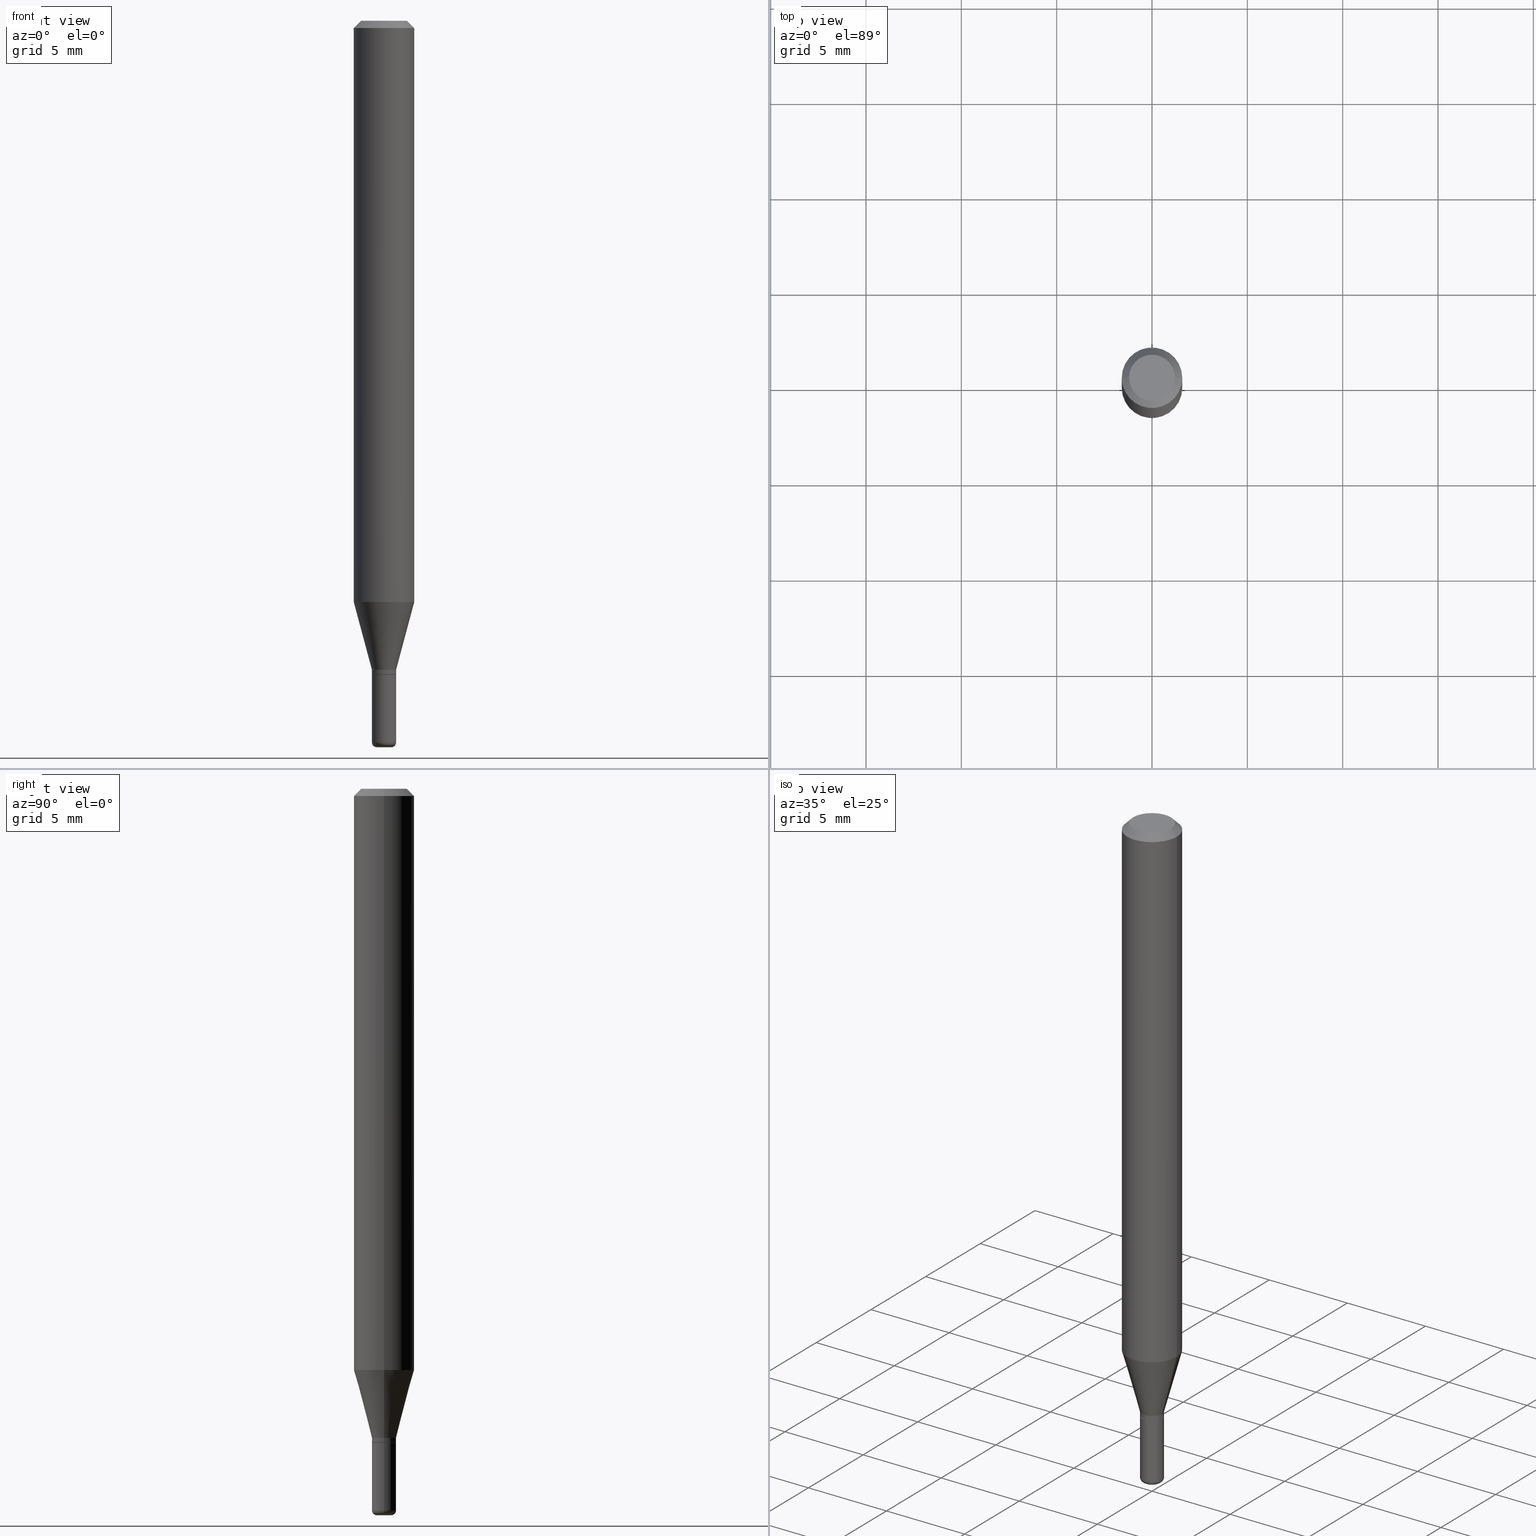
[diagram: canonical four-view strip — front | top / right | iso, engineering-drawing reading convention]
A machine part, canonical four-view strip (front | top / right | iso — engineering-drawing reading convention). The complete STEP part file that produces these views, byte-faithful:
ISO-10303-21;
HEADER;
FILE_DESCRIPTION (( 'STEP AP203' ),
    '1' );
FILE_NAME ('09149.STEP',
    '2024-02-29T22:41:01',
    ( '' ),
    ( '' ),
    'SwSTEP 2.0',
    'SolidWorks 2023',
    '' );
FILE_SCHEMA (( 'CONFIG_CONTROL_DESIGN' ));
ENDSEC;

DATA;
#1 = VERTEX_POINT ( 'NONE', #492 ) ;
#2 = PERSON_AND_ORGANIZATION ( #255, #399 ) ;
#3 = CARTESIAN_POINT ( 'NONE',  ( 0.000000000000000000, 0.000000000000000000, 0.000000000000000000 ) ) ;
#4 = ORIENTED_EDGE ( 'NONE', *, *, #93, .T. ) ;
#5 = MECHANICAL_CONTEXT ( 'NONE', #372, 'mechanical' ) ;
#6 = ORIENTED_EDGE ( 'NONE', *, *, #404, .F. ) ;
#7 = PERSON_AND_ORGANIZATION_ROLE ( 'creator' ) ;
#8 = LINE ( 'NONE', #165, #341 ) ;
#9 = PRODUCT_RELATED_PRODUCT_CATEGORY ( 'detail', '', ( #278 ) ) ;
#10 = ORIENTED_EDGE ( 'NONE', *, *, #208, .F. ) ;
#11 = CIRCLE ( 'NONE', #109, 0.02449999999999996972 ) ;
#12 = AXIS2_PLACEMENT_3D ( 'NONE', #334, #212, #215 ) ;
#13 = LINE ( 'NONE', #56, #86 ) ;
#14 = EDGE_CURVE ( 'NONE', #444, #432, #235, .T. ) ;
#15 = CARTESIAN_POINT ( 'NONE',  ( -0.02500000000000000139, -4.780267817217242146E-15, -1.350000000000000089 ) ) ;
#16 = DIRECTION ( 'NONE',  ( 2.438088387897960049E-29, -3.491481338843145188E-15, -1.000000000000000000 ) ) ;
#17 = DIRECTION ( 'NONE',  ( -2.445468806185136597E-29, 3.491481338843145583E-15, 1.000000000000000000 ) ) ;
#18 = EDGE_CURVE ( 'NONE', #40, #123, #8, .T. ) ;
#19 = DIRECTION ( 'NONE',  ( -6.982962677686266711E-15, -1.000000000000000000, 3.491481338843145583E-15 ) ) ;
#20 = AXIS2_PLACEMENT_3D ( 'NONE', #371, #169, #195 ) ;
#21 = AXIS2_PLACEMENT_3D ( 'NONE', #150, #386, #514 ) ;
#22 = DIRECTION ( 'NONE',  ( 1.000000000000000000, -6.982962677686282488E-15, 0.000000000000000000 ) ) ;
#23 = DIRECTION ( 'NONE',  ( -2.445468806185136597E-29, 3.491481338843145583E-15, 1.000000000000000000 ) ) ;
#24 = DIRECTION ( 'NONE',  ( 1.000000000000000000, -6.982962677686265922E-15, 0.000000000000000000 ) ) ;
#25 = FACE_OUTER_BOUND ( 'NONE', #477, .T. ) ;
#26 = CARTESIAN_POINT ( 'NONE',  ( -0.04750000000000000749, 3.578768372314221353E-16, 2.731847993664239060E-16 ) ) ;
#27 = DIRECTION ( 'NONE',  ( -2.445468806185136597E-29, 3.491481338843145583E-15, 1.000000000000000000 ) ) ;
#28 = CONICAL_SURFACE ( 'NONE', #409, 0.02449999999999996972, 0.7853981633975507526 ) ;
#29 = DIRECTION ( 'NONE',  ( -2.445468806185136597E-29, 3.491481338843145583E-15, 1.000000000000000000 ) ) ;
#30 = ADVANCED_FACE ( 'NONE', ( #131 ), #44, .F. ) ;
#31 = ADVANCED_FACE ( 'NONE', ( #454 ), #90, .F. ) ;
#32 = DIRECTION ( 'NONE',  ( -2.445468806185136597E-29, 3.491481338843145583E-15, 1.000000000000000000 ) ) ;
#33 = EDGE_LOOP ( 'NONE', ( #113, #430, #193, #6 ) ) ;
#34 = ORIENTED_EDGE ( 'NONE', *, *, #204, .F. ) ;
#35 = DATE_AND_TIME ( #81, #176 ) ;
#36 = VECTOR ( 'NONE', #422, 39.37007874015748143 ) ;
#37 = ORIENTED_EDGE ( 'NONE', *, *, #478, .F. ) ;
#38 = LENGTH_MEASURE_WITH_UNIT ( LENGTH_MEASURE( 0.02539999999999999897 ), #46 );
#39 = CARTESIAN_POINT ( 'NONE',  ( 0.06250000000000000000, -4.888073874380378612E-16, -0.01499999999999970281 ) ) ;
#40 = VERTEX_POINT ( 'NONE', #416 ) ;
#41 =( NAMED_UNIT ( * ) SI_UNIT ( $, .STERADIAN. ) SOLID_ANGLE_UNIT ( ) );
#42 = APPROVAL_PERSON_ORGANIZATION ( #476, #382, #284 ) ;
#43 = CIRCLE ( 'NONE', #221, 0.009999999999999944697 ) ;
#44 = PLANE ( 'NONE',  #118 ) ;
#45 = AXIS2_PLACEMENT_3D ( 'NONE', #3, #71, #186 ) ;
#46 =( LENGTH_UNIT ( ) NAMED_UNIT ( * ) SI_UNIT ( $, .METRE. ) );
#47 = ADVANCED_FACE ( 'NONE', ( #336 ), #59, .T. ) ;
#48 = ORIENTED_EDGE ( 'NONE', *, *, #124, .F. ) ;
#49 = ORIENTED_EDGE ( 'NONE', *, *, #453, .T. ) ;
#50 = DIRECTION ( 'NONE',  ( 1.000000000000000000, -6.982962677686262766E-15, 0.000000000000000000 ) ) ;
#51 = APPROVAL_STATUS ( 'not_yet_approved' ) ;
#52 = CIRCLE ( 'NONE', #184, 0.06250000000000000000 ) ;
#53 = LOCAL_TIME ( 17, 41, 1.000000000000000000, #246 ) ;
#54 = DIRECTION ( 'NONE',  ( -1.000000000000000000, 6.982962677686265922E-15, -4.876176775795935793E-29 ) ) ;
#55 = FACE_OUTER_BOUND ( 'NONE', #441, .T. ) ;
#56 = CARTESIAN_POINT ( 'NONE',  ( 0.02499999999999996669, -1.745740669421564459E-16, 1.219044193948982372E-30 ) ) ;
#57 = DIRECTION ( 'NONE',  ( 1.000000000000000000, -6.982962677686265922E-15, 4.876176775795935793E-29 ) ) ;
#58 = PLANE ( 'NONE',  #258 ) ;
#59 = CONICAL_SURFACE ( 'NONE', #351, 0.02499999999999996322, 0.2617993877991492968 ) ;
#60 = CARTESIAN_POINT ( 'NONE',  ( 3.300160153946842277E-29, -4.711754066768825092E-15, -1.349500000000000144 ) ) ;
#61 = APPROVAL ( #277, 'UNSPECIFIED' ) ;
#62 = DIRECTION ( 'NONE',  ( -2.445468806185136597E-29, 3.491481338843145583E-15, 1.000000000000000000 ) ) ;
#63 = CARTESIAN_POINT ( 'NONE',  ( 3.643748521215853910E-29, -5.202307194876288105E-15, -1.490000000000000213 ) ) ;
#64 = DIRECTION ( 'NONE',  ( -2.445468806185136597E-29, 3.491481338843145583E-15, 1.000000000000000000 ) ) ;
#65 = CARTESIAN_POINT ( 'NONE',  ( 3.668203209277704895E-29, -5.237222008264718177E-15, -1.500000000000000222 ) ) ;
#66 = ADVANCED_FACE ( 'NONE', ( #139 ), #97, .T. ) ;
#67 = ORIENTED_EDGE ( 'NONE', *, *, #140, .F. ) ;
#68 = CIRCLE ( 'NONE', #438, 0.02449999999999996972 ) ;
#69 = DIRECTION ( 'NONE',  ( 1.000000000000000000, -6.982962677686265133E-15, 0.000000000000000000 ) ) ;
#70 = VERTEX_POINT ( 'NONE', #502 ) ;
#71 = DIRECTION ( 'NONE',  ( -2.445468806185136597E-29, 3.491481338843145583E-15, 1.000000000000000000 ) ) ;
#72 = ORIENTED_EDGE ( 'NONE', *, *, #185, .F. ) ;
#73 = CYLINDRICAL_SURFACE ( 'NONE', #473, 0.02499999999999996669 ) ;
#74 = ORIENTED_EDGE ( 'NONE', *, *, #345, .T. ) ;
#75 = CIRCLE ( 'NONE', #240, 0.04750000000000000749 ) ;
#76 = CIRCLE ( 'NONE', #465, 0.02499999999999994588 ) ;
#77 = ADVANCED_FACE ( 'NONE', ( #102 ), #58, .F. ) ;
#78 = CIRCLE ( 'NONE', #199, 0.01500000000000000465 ) ;
#79 = PERSON_AND_ORGANIZATION_ROLE ( 'classification_officer' ) ;
#80 = ORIENTED_EDGE ( 'NONE', *, *, #93, .F. ) ;
#81 = CALENDAR_DATE ( 2024, 29, 2 ) ;
#82 = CARTESIAN_POINT ( 'NONE',  ( 3.668203209277704895E-29, -5.237222008264718177E-15, -1.500000000000000222 ) ) ;
#83 = ORIENTED_EDGE ( 'NONE', *, *, #85, .F. ) ;
#84 = COORDINATED_UNIVERSAL_TIME_OFFSET ( 5, 0, .BEHIND. ) ;
#85 = EDGE_CURVE ( 'NONE', #257, #435, #43, .T. ) ;
#86 = VECTOR ( 'NONE', #376, 39.37007874015748143 ) ;
#87 = EDGE_LOOP ( 'NONE', ( #189, #149, #155, #313 ) ) ;
#88 = CIRCLE ( 'NONE', #380, 0.02499999999999997363 ) ;
#89 = ORIENTED_EDGE ( 'NONE', *, *, #132, .F. ) ;
#90 = PLANE ( 'NONE',  #183 ) ;
#91 = DIRECTION ( 'NONE',  ( 2.445468806185136597E-29, -3.491481338843145583E-15, -1.000000000000000000 ) ) ;
#92 = CIRCLE ( 'NONE', #308, 0.06250000000000000000 ) ;
#93 = EDGE_CURVE ( 'NONE', #194, #230, #463, .T. ) ;
#94 = DIRECTION ( 'NONE',  ( -2.445468806185136597E-29, 3.491481338843145583E-15, 1.000000000000000000 ) ) ;
#95 = CARTESIAN_POINT ( 'NONE',  ( 0.000000000000000000, 0.000000000000000000, 0.000000000000000000 ) ) ;
#96 = FACE_OUTER_BOUND ( 'NONE', #344, .T. ) ;
#97 = CYLINDRICAL_SURFACE ( 'NONE', #427, 0.02499999999999997363 ) ;
#98 = DIRECTION ( 'NONE',  ( 1.000000000000000000, -6.982962677686266711E-15, 0.000000000000000000 ) ) ;
#99 = DIRECTION ( 'NONE',  ( -2.445468806185136877E-29, 3.491481338843145188E-15, 1.000000000000000000 ) ) ;
#100 = VECTOR ( 'NONE', #500, 39.37007874015748143 ) ;
#101 = DIRECTION ( 'NONE',  ( -0.2588190451025205729, 5.211531920934544731E-15, 0.9659258262890682012 ) ) ;
#102 = FACE_OUTER_BOUND ( 'NONE', #347, .T. ) ;
#103 = EDGE_CURVE ( 'NONE', #200, #300, #287, .T. ) ;
#104 = CYLINDRICAL_SURFACE ( 'NONE', #45, 0.02499999999999997363 ) ;
#105 = EDGE_LOOP ( 'NONE', ( #393, #120, #274, #34 ) ) ;
#106 = CARTESIAN_POINT ( 'NONE',  ( 0.000000000000000000, 0.000000000000000000, 0.000000000000000000 ) ) ;
#107 = VERTEX_POINT ( 'NONE', #170 ) ;
#108 = ADVANCED_FACE ( 'NONE', ( #374 ), #459, .T. ) ;
#109 = AXIS2_PLACEMENT_3D ( 'NONE', #178, #62, #384 ) ;
#110 = DIRECTION ( 'NONE',  ( 1.000000000000000000, -6.982962677686266711E-15, 4.852736867747365086E-29 ) ) ;
#111 = ORIENTED_EDGE ( 'NONE', *, *, #404, .T. ) ;
#112 = CARTESIAN_POINT ( 'NONE',  ( -0.06250000000000000000, 3.840629472727455270E-16, -0.01499999999999970281 ) ) ;
#113 = ORIENTED_EDGE ( 'NONE', *, *, #362, .T. ) ;
#114 = CARTESIAN_POINT ( 'NONE',  ( -0.02449999999999996972, -4.539416837177022290E-15, -1.350000000000000089 ) ) ;
#115 = EDGE_CURVE ( 'NONE', #200, #486, #296, .T. ) ;
#116 = EDGE_CURVE ( 'NONE', #70, #435, #166, .T. ) ;
#117 = ORIENTED_EDGE ( 'NONE', *, *, #14, .T. ) ;
#118 = AXIS2_PLACEMENT_3D ( 'NONE', #488, #451, #281 ) ;
#119 = CONICAL_SURFACE ( 'NONE', #21, 0.02499999999999996322, 0.2617993877991492968 ) ;
#120 = ORIENTED_EDGE ( 'NONE', *, *, #132, .T. ) ;
#121 = PERSON_AND_ORGANIZATION_ROLE ( 'design_supplier' ) ;
#122 = DIRECTION ( 'NONE',  ( -2.445468806185136597E-29, 3.491481338843145583E-15, 1.000000000000000000 ) ) ;
#123 = VERTEX_POINT ( 'NONE', #250 ) ;
#124 = EDGE_CURVE ( 'NONE', #435, #444, #461, .T. ) ;
#125 = APPROVAL_ROLE ( '' ) ;
#126 = ORIENTED_EDGE ( 'NONE', *, *, #202, .F. ) ;
#127 = AXIS2_PLACEMENT_3D ( 'NONE', #95, #173, #421 ) ;
#128 = EDGE_LOOP ( 'NONE', ( #80, #126, #481, #49 ) ) ;
#129 = AXIS2_PLACEMENT_3D ( 'NONE', #499, #462, #214 ) ;
#130 = MANIFOLD_SOLID_BREP ( 'Body-Move/Copy2[2]', #506 ) ;
#131 = FACE_OUTER_BOUND ( 'NONE', #161, .T. ) ;
#132 = EDGE_CURVE ( 'NONE', #107, #123, #449, .T. ) ;
#133 = CARTESIAN_POINT ( 'NONE',  ( 1.745740669421896767E-16, 0.02499999999999528988, -1.350000000000000089 ) ) ;
#134 = DIRECTION ( 'NONE',  ( -2.445468806185136597E-29, 3.491481338843145583E-15, 1.000000000000000000 ) ) ;
#135 = DIMENSIONAL_EXPONENTS ( 1.000000000000000000, 0.000000000000000000, 0.000000000000000000, 0.000000000000000000, 0.000000000000000000, 0.000000000000000000, 0.000000000000000000 ) ;
#136 = CC_DESIGN_SECURITY_CLASSIFICATION ( #146, ( #243 ) ) ;
#137 = DIRECTION ( 'NONE',  ( 1.000000000000000000, -6.982962677686274599E-15, 0.000000000000000000 ) ) ;
#138 = CARTESIAN_POINT ( 'NONE',  ( -0.02499999999999996322, -4.500949310109790531E-15, -1.340000000000000080 ) ) ;
#139 = FACE_OUTER_BOUND ( 'NONE', #167, .T. ) ;
#140 = EDGE_CURVE ( 'NONE', #1, #40, #11, .T. ) ;
#141 = DIRECTION ( 'NONE',  ( -0.7071067811865479058, 2.468850131082261005E-15, -0.7071067811865471286 ) ) ;
#142 = DIRECTION ( 'NONE',  ( -2.438088387897960049E-29, 3.491481338843145188E-15, 1.000000000000000000 ) ) ;
#143 = DIRECTION ( 'NONE',  ( 7.105427357601001859E-15, 1.000000000000000000, -3.491481338843145583E-15 ) ) ;
#144 = DIRECTION ( 'NONE',  ( 1.000000000000000000, -6.982962677686265922E-15, 4.876176775795935232E-29 ) ) ;
#145 = CONICAL_SURFACE ( 'NONE', #457, 0.02449999999999996972, 0.7853981633975507526 ) ;
#146 = SECURITY_CLASSIFICATION ( '', '', #394 ) ;
#147 = DIRECTION ( 'NONE',  ( 1.000000000000000000, -6.982962677686261977E-15, 0.000000000000000000 ) ) ;
#148 = DIRECTION ( 'NONE',  ( -2.445468806185136877E-29, 3.491481338843145188E-15, 1.000000000000000000 ) ) ;
#149 = ORIENTED_EDGE ( 'NONE', *, *, #204, .T. ) ;
#150 = CARTESIAN_POINT ( 'NONE',  ( 3.276928200288083533E-29, -4.678584994049815735E-15, -1.340000000000000080 ) ) ;
#151 = ORIENTED_EDGE ( 'NONE', *, *, #453, .F. ) ;
#152 = CARTESIAN_POINT ( 'NONE',  ( -0.02499999999999996322, -4.123402814337748307E-15, -1.340000000000000080 ) ) ;
#153 = ORIENTED_EDGE ( 'NONE', *, *, #282, .T. ) ;
#154 = AXIS2_PLACEMENT_3D ( 'NONE', #65, #29, #391 ) ;
#155 = ORIENTED_EDGE ( 'NONE', *, *, #208, .T. ) ;
#156 = PERSON_AND_ORGANIZATION_ROLE ( 'design_owner' ) ;
#157 = CC_DESIGN_DATE_AND_TIME_ASSIGNMENT ( #314, #227, ( #337 ) ) ;
#158 = ORIENTED_EDGE ( 'NONE', *, *, #202, .T. ) ;
#159 = DIRECTION ( 'NONE',  ( 1.000000000000000000, -6.982962677686269866E-15, 4.883557194083113462E-29 ) ) ;
#160 = EDGE_CURVE ( 'NONE', #123, #355, #13, .T. ) ;
#161 = EDGE_LOOP ( 'NONE', ( #158, #220 ) ) ;
#162 = COORDINATED_UNIVERSAL_TIME_OFFSET ( 5, 0, .BEHIND. ) ;
#163 = ORIENTED_EDGE ( 'NONE', *, *, #379, .T. ) ;
#164 = CALENDAR_DATE ( 2024, 29, 2 ) ;
#165 = CARTESIAN_POINT ( 'NONE',  ( 0.02449999999999996972, -4.884582393041560256E-15, -1.350000000000000089 ) ) ;
#166 = CIRCLE ( 'NONE', #12, 0.02499999999999994588 ) ;
#167 = EDGE_LOOP ( 'NONE', ( #224, #475, #266, #48 ) ) ;
#168 = LOCAL_TIME ( 17, 41, 1.000000000000000000, #162 ) ;
#169 = DIRECTION ( 'NONE',  ( 2.445468806185136597E-29, -3.491481338843145583E-15, -1.000000000000000000 ) ) ;
#170 = CARTESIAN_POINT ( 'NONE',  ( -0.02499999999999997363, -4.534118382828799888E-15, -1.349500000000000144 ) ) ;
#171 = DIRECTION ( 'NONE',  ( 1.000000000000000000, -6.982962677686266711E-15, 0.000000000000000000 ) ) ;
#172 = ADVANCED_FACE ( 'NONE', ( #25 ), #378, .T. ) ;
#173 = DIRECTION ( 'NONE',  ( -2.445468806185136597E-29, 3.491481338843145583E-15, 1.000000000000000000 ) ) ;
#174 = CONICAL_SURFACE ( 'NONE', #20, 0.06250000000000000000, 0.7853981633974488341 ) ;
#175 = AXIS2_PLACEMENT_3D ( 'NONE', #474, #143, #494 ) ;
#176 = LOCAL_TIME ( 17, 41, 1.000000000000000000, #400 ) ;
#177 = DIRECTION ( 'NONE',  ( 1.000000000000000000, -6.982962677686254878E-15, 0.000000000000000000 ) ) ;
#178 = CARTESIAN_POINT ( 'NONE',  ( 3.301382888349935078E-29, -4.713499807438246596E-15, -1.350000000000000089 ) ) ;
#179 = CARTESIAN_POINT ( 'NONE',  ( 0.06250000000000000000, -4.364351673553916694E-16, 3.047610484872459871E-30 ) ) ;
#180 = CARTESIAN_POINT ( 'NONE',  ( -6.680649051745406845E-45, 9.538196290434862081E-31, 2.731847993664263218E-16 ) ) ;
#181 = CARTESIAN_POINT ( 'NONE',  ( 3.668203209277632395E-31, -5.237222008264614861E-17, -0.01499999999999970281 ) ) ;
#182 = CARTESIAN_POINT ( 'NONE',  ( -0.06250000000000000000, -3.745856318565706082E-15, -1.200048094716167135 ) ) ;
#183 = AXIS2_PLACEMENT_3D ( 'NONE', #133, #16, #54 ) ;
#184 = AXIS2_PLACEMENT_3D ( 'NONE', #181, #501, #171 ) ;
#185 = EDGE_CURVE ( 'NONE', #194, #412, #75, .T. ) ;
#186 = DIRECTION ( 'NONE',  ( 1.000000000000000000, -6.982962677686265922E-15, 4.876176775795935232E-29 ) ) ;
#187 = EDGE_LOOP ( 'NONE', ( #153, #487, #517, #83 ) ) ;
#188 = LINE ( 'NONE', #219, #241 ) ;
#189 = ORIENTED_EDGE ( 'NONE', *, *, #387, .F. ) ;
#190 = EDGE_LOOP ( 'NONE', ( #320, #317, #363, #10 ) ) ;
#191 = DATE_AND_TIME ( #407, #168 ) ;
#192 = AXIS2_PLACEMENT_3D ( 'NONE', #373, #247, #57 ) ;
#193 = ORIENTED_EDGE ( 'NONE', *, *, #413, .F. ) ;
#194 = VERTEX_POINT ( 'NONE', #466 ) ;
#195 = DIRECTION ( 'NONE',  ( -1.000000000000000000, 6.982962677686266711E-15, 0.000000000000000000 ) ) ;
#196 = ORIENTED_EDGE ( 'NONE', *, *, #505, .F. ) ;
#197 =( CONVERSION_BASED_UNIT ( 'INCH', #38 ) LENGTH_UNIT ( ) NAMED_UNIT ( #135 ) );
#198 = ADVANCED_FACE ( 'NONE', ( #206 ), #174, .T. ) ;
#199 = AXIS2_PLACEMENT_3D ( 'NONE', #82, #425, #24 ) ;
#200 = VERTEX_POINT ( 'NONE', #182 ) ;
#201 = CARTESIAN_POINT ( 'NONE',  ( 3.301382888349935078E-29, -4.713499807438246596E-15, -1.350000000000000089 ) ) ;
#202 = EDGE_CURVE ( 'NONE', #412, #194, #408, .T. ) ;
#203 = ORIENTED_EDGE ( 'NONE', *, *, #116, .F. ) ;
#204 = EDGE_CURVE ( 'NONE', #323, #355, #343, .T. ) ;
#205 = VECTOR ( 'NONE', #265, 39.37007874015748143 ) ;
#206 = FACE_OUTER_BOUND ( 'NONE', #128, .T. ) ;
#207 = DIRECTION ( 'NONE',  ( 1.000000000000000000, -6.982962677686265922E-15, 4.876176775795935793E-29 ) ) ;
#208 = EDGE_CURVE ( 'NONE', #355, #486, #217, .T. ) ;
#209 = CARTESIAN_POINT ( 'NONE',  ( 3.301382888349935078E-29, -4.713499807438246596E-15, -1.350000000000000089 ) ) ;
#210 = DIRECTION ( 'NONE',  ( 1.000000000000000000, -6.982962677686265133E-15, 0.000000000000000000 ) ) ;
#211 = LINE ( 'NONE', #114, #205 ) ;
#212 = DIRECTION ( 'NONE',  ( -2.445468806185136597E-29, 3.491481338843145583E-15, 1.000000000000000000 ) ) ;
#213 = APPROVAL_PERSON_ORGANIZATION ( #442, #321, #356 ) ;
#214 = DIRECTION ( 'NONE',  ( 1.000000000000000000, -6.982962677686269866E-15, 4.883557194083113462E-29 ) ) ;
#215 = DIRECTION ( 'NONE',  ( 1.000000000000000000, -6.982962677686269866E-15, 0.000000000000000000 ) ) ;
#216 = DIRECTION ( 'NONE',  ( -2.445468806185136597E-29, 3.491481338843145583E-15, 1.000000000000000000 ) ) ;
#217 = LINE ( 'NONE', #388, #369 ) ;
#218 = EDGE_CURVE ( 'NONE', #107, #323, #305, .T. ) ;
#219 = CARTESIAN_POINT ( 'NONE',  ( -0.02499999999999997363, 1.776356839400248591E-16, -1.229733772563725079E-30 ) ) ;
#220 = ORIENTED_EDGE ( 'NONE', *, *, #185, .T. ) ;
#221 = AXIS2_PLACEMENT_3D ( 'NONE', #327, #19, #137 ) ;
#222 = VECTOR ( 'NONE', #148, 39.37007874015748143 ) ;
#223 = CYLINDRICAL_SURFACE ( 'NONE', #414, 0.06250000000000000000 ) ;
#224 = ORIENTED_EDGE ( 'NONE', *, *, #468, .T. ) ;
#225 = DIRECTION ( 'NONE',  ( -2.445468806185136597E-29, 3.491481338843145583E-15, 1.000000000000000000 ) ) ;
#226 = ORIENTED_EDGE ( 'NONE', *, *, #467, .T. ) ;
#227 = DATE_TIME_ROLE ( 'creation_date' ) ;
#228 = ORIENTED_EDGE ( 'NONE', *, *, #160, .F. ) ;
#229 = DIRECTION ( 'NONE',  ( 1.000000000000000000, 0.000000000000000000, 0.000000000000000000 ) ) ;
#230 = VERTEX_POINT ( 'NONE', #39 ) ;
#231 = ORIENTED_EDGE ( 'NONE', *, *, #103, .F. ) ;
#232 = APPROVAL_STATUS ( 'not_yet_approved' ) ;
#233 = ADVANCED_FACE ( 'NONE', ( #509 ), #223, .T. ) ;
#234 = DIRECTION ( 'NONE',  ( -2.445468806185136597E-29, 3.491481338843145583E-15, 1.000000000000000000 ) ) ;
#235 = CIRCLE ( 'NONE', #456, 0.02500000000000000139 ) ;
#236 = ORIENTED_EDGE ( 'NONE', *, *, #434, .F. ) ;
#237 = CC_DESIGN_PERSON_AND_ORGANIZATION_ASSIGNMENT ( #2, #7, ( #337 ) ) ;
#238 = ORIENTED_EDGE ( 'NONE', *, *, #259, .F. ) ;
#239 = ORIENTED_EDGE ( 'NONE', *, *, #85, .T. ) ;
#240 = AXIS2_PLACEMENT_3D ( 'NONE', #180, #339, #504 ) ;
#241 = VECTOR ( 'NONE', #348, 39.37007874015748143 ) ;
#242 = DIRECTION ( 'NONE',  ( -1.000000000000000000, 6.982962677686266711E-15, 0.000000000000000000 ) ) ;
#243 = PRODUCT_DEFINITION_FORMATION_WITH_SPECIFIED_SOURCE ( 'ANY', '', #278, .NOT_KNOWN. ) ;
#244 = LINE ( 'NONE', #179, #36 ) ;
#245 = CARTESIAN_POINT ( 'NONE',  ( 0.02499999999999997363, -1.745740669421564705E-16, 1.219044193948982547E-30 ) ) ;
#246 = COORDINATED_UNIVERSAL_TIME_OFFSET ( 5, 0, .BEHIND. ) ;
#247 = DIRECTION ( 'NONE',  ( -2.438088387897960049E-29, 3.491481338843145188E-15, 1.000000000000000000 ) ) ;
#248 = CARTESIAN_POINT ( 'NONE',  ( 2.934680181550293043E-29, -4.189945528415768698E-15, -1.200048094716167135 ) ) ;
#249 = CARTESIAN_POINT ( 'NONE',  ( 3.301382888349935078E-29, -4.713499807438246596E-15, -1.350000000000000089 ) ) ;
#250 = CARTESIAN_POINT ( 'NONE',  ( 0.02499999999999997363, -4.886328133710982549E-15, -1.349500000000000144 ) ) ;
#251 = AXIS2_PLACEMENT_3D ( 'NONE', #484, #122, #272 ) ;
#252 = FACE_OUTER_BOUND ( 'NONE', #437, .T. ) ;
#253 = CARTESIAN_POINT ( 'NONE',  ( 0.06250000000000000000, -4.811533449433669144E-16, -0.01499999999999970281 ) ) ;
#254 = FACE_OUTER_BOUND ( 'NONE', #510, .T. ) ;
#255 = PERSON ( 'UNSPECIFIED', 'UNSPECIFIED', 'UNSPECIFIED', ('UNSPECIFIED'), ('UNSPECIFIED'), ('UNSPECIFIED') ) ;
#256 = CARTESIAN_POINT ( 'NONE',  ( -6.680649051745406845E-45, 9.538196290434862081E-31, 2.731847993664263218E-16 ) ) ;
#257 = VERTEX_POINT ( 'NONE', #302 ) ;
#258 = AXIS2_PLACEMENT_3D ( 'NONE', #292, #142, #207 ) ;
#259 = EDGE_CURVE ( 'NONE', #355, #323, #269, .T. ) ;
#260 = VECTOR ( 'NONE', #101, 39.37007874015748854 ) ;
#261 = CC_DESIGN_PERSON_AND_ORGANIZATION_ASSIGNMENT ( #439, #79, ( #146 ) ) ;
#262 = DIRECTION ( 'NONE',  ( 1.000000000000000000, -6.982962677686265133E-15, 0.000000000000000000 ) ) ;
#263 = CARTESIAN_POINT ( 'NONE',  ( 0.000000000000000000, 0.000000000000000000, 0.000000000000000000 ) ) ;
#264 = CC_DESIGN_PERSON_AND_ORGANIZATION_ASSIGNMENT ( #267, #121, ( #243 ) ) ;
#265 = DIRECTION ( 'NONE',  ( -0.7071067811866199593, 7.493145998870616062E-15, 0.7071067811864750752 ) ) ;
#266 = ORIENTED_EDGE ( 'NONE', *, *, #14, .F. ) ;
#267 = PERSON_AND_ORGANIZATION ( #255, #399 ) ;
#268 = AXIS2_PLACEMENT_3D ( 'NONE', #248, #290, #50 ) ;
#269 = CIRCLE ( 'NONE', #279, 0.02499999999999996322 ) ;
#270 = ORIENTED_EDGE ( 'NONE', *, *, #18, .T. ) ;
#271 = CARTESIAN_POINT ( 'NONE',  ( 0.000000000000000000, 0.000000000000000000, 0.000000000000000000 ) ) ;
#272 = DIRECTION ( 'NONE',  ( 1.000000000000000000, -6.982962677686267499E-15, 4.876176775795935793E-29 ) ) ;
#273 = PRODUCT_DEFINITION_SHAPE ( 'NONE', 'NONE',  #337 ) ;
#274 = ORIENTED_EDGE ( 'NONE', *, *, #160, .T. ) ;
#275 = COORDINATED_UNIVERSAL_TIME_OFFSET ( 5, 0, .BEHIND. ) ;
#276 = ORIENTED_EDGE ( 'NONE', *, *, #513, .F. ) ;
#277 = APPROVAL_STATUS ( 'not_yet_approved' ) ;
#278 = PRODUCT ( '09149', '09149', '', ( #5 ) ) ;
#279 = AXIS2_PLACEMENT_3D ( 'NONE', #299, #27, #69 ) ;
#280 = DIRECTION ( 'NONE',  ( 0.7071067811866199593, -2.468850131083015945E-15, 0.7071067811864750752 ) ) ;
#281 = DIRECTION ( 'NONE',  ( -1.000000000000000000, 6.982962677686265922E-15, -4.876176775795935793E-29 ) ) ;
#282 = EDGE_CURVE ( 'NONE', #257, #309, #498, .T. ) ;
#283 = DIRECTION ( 'NONE',  ( 1.000000000000000000, -6.982962677686261977E-15, 0.000000000000000000 ) ) ;
#284 = APPROVAL_ROLE ( '' ) ;
#285 = CARTESIAN_POINT ( 'NONE',  ( 3.301382888349935078E-29, -4.713499807438246596E-15, -1.350000000000000089 ) ) ;
#286 = CIRCLE ( 'NONE', #175, 0.009999999999999944697 ) ;
#287 = LINE ( 'NONE', #423, #100 ) ;
#288 = ADVANCED_FACE ( 'NONE', ( #443 ), #104, .T. ) ;
#289 = CARTESIAN_POINT ( 'NONE',  ( 0.02499999999999994588, -5.376881261818443984E-15, -1.490000000000000213 ) ) ;
#290 = DIRECTION ( 'NONE',  ( -2.445468806185136597E-29, 3.491481338843145583E-15, 1.000000000000000000 ) ) ;
#291 = LINE ( 'NONE', #138, #260 ) ;
#292 = CARTESIAN_POINT ( 'NONE',  ( 3.582686580359766038E-29, -5.359686688179453325E-15, -1.500000000000000222 ) ) ;
#293 = DIRECTION ( 'NONE',  ( -2.445468806185136597E-29, 3.491481338843145583E-15, 1.000000000000000000 ) ) ;
#294 = DIRECTION ( 'NONE',  ( 0.7071067811865479058, -7.319954787623257623E-15, -0.7071067811865471286 ) ) ;
#295 = CC_DESIGN_DATE_AND_TIME_ASSIGNMENT ( #35, #352, ( #146 ) ) ;
#296 = CIRCLE ( 'NONE', #268, 0.06250000000000000000 ) ;
#297 = CC_DESIGN_APPROVAL ( #321, ( #337 ) ) ;
#298 = DIRECTION ( 'NONE',  ( 1.000000000000000000, -6.982962677686269866E-15, 0.000000000000000000 ) ) ;
#299 = CARTESIAN_POINT ( 'NONE',  ( 3.276928200288083533E-29, -4.678584994049815735E-15, -1.340000000000000080 ) ) ;
#300 = VERTEX_POINT ( 'NONE', #342 ) ;
#301 = EDGE_CURVE ( 'NONE', #70, #432, #188, .T. ) ;
#302 = CARTESIAN_POINT ( 'NONE',  ( 0.01500000000000000465, -5.341966448430012335E-15, -1.500000000000000222 ) ) ;
#303 = ORIENTED_EDGE ( 'NONE', *, *, #505, .T. ) ;
#304 = MANIFOLD_SOLID_BREP ( 'Body-Move/Copy2[1]', #497 ) ;
#305 = LINE ( 'NONE', #426, #222 ) ;
#306 = LOCAL_TIME ( 17, 41, 1.000000000000000000, #275 ) ;
#307 = AXIS2_PLACEMENT_3D ( 'NONE', #256, #469, #110 ) ;
#308 = AXIS2_PLACEMENT_3D ( 'NONE', #460, #328, #98 ) ;
#309 = VERTEX_POINT ( 'NONE', #511 ) ;
#310 = CALENDAR_DATE ( 2024, 29, 2 ) ;
#311 = PERSON_AND_ORGANIZATION ( #255, #399 ) ;
#312 = ADVANCED_FACE ( 'NONE', ( #428 ), #119, .T. ) ;
#313 = ORIENTED_EDGE ( 'NONE', *, *, #115, .F. ) ;
#314 = DATE_AND_TIME ( #164, #359 ) ;
#315 = TOROIDAL_SURFACE ( 'NONE', #129, 0.01500000000000000291, 0.009999999999999946432 ) ;
#316 = CYLINDRICAL_SURFACE ( 'NONE', #251, 0.02499999999999996669 ) ;
#317 = ORIENTED_EDGE ( 'NONE', *, *, #387, .T. ) ;
#318 = PERSON_AND_ORGANIZATION ( #255, #399 ) ;
#319 = ADVANCED_FACE ( 'NONE', ( #254 ), #370, .T. ) ;
#320 = ORIENTED_EDGE ( 'NONE', *, *, #259, .T. ) ;
#321 = APPROVAL ( #232, 'UNSPECIFIED' ) ;
#322 = APPROVAL_DATE_TIME ( #398, #61 ) ;
#323 = VERTEX_POINT ( 'NONE', #152 ) ;
#324 = DATE_AND_TIME ( #326, #53 ) ;
#325 = ORIENTED_EDGE ( 'NONE', *, *, #116, .T. ) ;
#326 = CALENDAR_DATE ( 2024, 29, 2 ) ;
#327 = CARTESIAN_POINT ( 'NONE',  ( 0.01500000000000000291, -5.307051635041582264E-15, -1.490000000000000213 ) ) ;
#328 = DIRECTION ( 'NONE',  ( -2.445468806185136597E-29, 3.491481338843145583E-15, 1.000000000000000000 ) ) ;
#329 = ADVANCED_FACE ( 'NONE', ( #401 ), #316, .T. ) ;
#330 = DIRECTION ( 'NONE',  ( -2.445468806185136597E-29, 3.491481338843145583E-15, 1.000000000000000000 ) ) ;
#331 = DIRECTION ( 'NONE',  ( 1.000000000000000000, -6.982962677686282488E-15, 0.000000000000000000 ) ) ;
#332 = VECTOR ( 'NONE', #99, 39.37007874015748143 ) ;
#333 = AXIS2_PLACEMENT_3D ( 'NONE', #472, #225, #159 ) ;
#334 = CARTESIAN_POINT ( 'NONE',  ( 3.643748521215853910E-29, -5.202307194876288105E-15, -1.490000000000000213 ) ) ;
#335 = CARTESIAN_POINT ( 'NONE',  ( 0.02499999999999996322, -4.853159060991972403E-15, -1.340000000000000080 ) ) ;
#336 = FACE_OUTER_BOUND ( 'NONE', #190, .T. ) ;
#337 = PRODUCT_DEFINITION ( 'UNKNOWN', '', #243, #365 ) ;
#338 = FACE_OUTER_BOUND ( 'NONE', #187, .T. ) ;
#339 = DIRECTION ( 'NONE',  ( -2.445468806185136597E-29, 3.491481338843145583E-15, 1.000000000000000000 ) ) ;
#340 = CARTESIAN_POINT ( 'NONE',  ( 0.02500000000000000139, -4.888073874380403263E-15, -1.350000000000000089 ) ) ;
#341 = VECTOR ( 'NONE', #280, 39.37007874015748143 ) ;
#342 = CARTESIAN_POINT ( 'NONE',  ( -0.06250000000000000000, -1.677069664399144681E-15, -0.01499999999999970281 ) ) ;
#343 = CIRCLE ( 'NONE', #508, 0.02499999999999996322 ) ;
#344 = EDGE_LOOP ( 'NONE', ( #196, #67 ) ) ;
#345 = EDGE_CURVE ( 'NONE', #309, #257, #78, .T. ) ;
#346 = DIRECTION ( 'NONE',  ( 0.2588190451025205729, 1.565188264969627490E-15, 0.9659258262890682012 ) ) ;
#347 = EDGE_LOOP ( 'NONE', ( #470, #390 ) ) ;
#348 = DIRECTION ( 'NONE',  ( -2.445468806185136877E-29, 3.491481338843145188E-15, 1.000000000000000000 ) ) ;
#349 = ORIENTED_EDGE ( 'NONE', *, *, #467, .F. ) ;
#350 = ORIENTED_EDGE ( 'NONE', *, *, #218, .T. ) ;
#351 = AXIS2_PLACEMENT_3D ( 'NONE', #493, #330, #210 ) ;
#352 = DATE_TIME_ROLE ( 'classification_date' ) ;
#353 = AXIS2_PLACEMENT_3D ( 'NONE', #420, #216, #507 ) ;
#354 = APPROVAL_DATE_TIME ( #191, #321 ) ;
#355 = VERTEX_POINT ( 'NONE', #335 ) ;
#356 = APPROVAL_ROLE ( '' ) ;
#357 = CARTESIAN_POINT ( 'NONE',  ( 3.276928200288083533E-29, -4.678584994049815735E-15, -1.340000000000000080 ) ) ;
#358 = ORIENTED_EDGE ( 'NONE', *, *, #140, .T. ) ;
#359 = LOCAL_TIME ( 17, 41, 1.000000000000000000, #84 ) ;
#360 = APPLICATION_PROTOCOL_DEFINITION ( 'international standard', 'config_control_design', 1994, #372 ) ;
#361 = VECTOR ( 'NONE', #294, 39.37007874015748143 ) ;
#362 = EDGE_CURVE ( 'NONE', #486, #200, #389, .T. ) ;
#363 = ORIENTED_EDGE ( 'NONE', *, *, #362, .F. ) ;
#364 = APPLICATION_PROTOCOL_DEFINITION ( 'international standard', 'config_control_design', 1994, #480 ) ;
#365 = DESIGN_CONTEXT ( 'detailed design', #480, 'design' ) ;
#366 = ORIENTED_EDGE ( 'NONE', *, *, #18, .F. ) ;
#367 = APPROVAL_DATE_TIME ( #324, #382 ) ;
#368 = ORIENTED_EDGE ( 'NONE', *, *, #124, .T. ) ;
#369 = VECTOR ( 'NONE', #346, 39.37007874015748854 ) ;
#370 = TOROIDAL_SURFACE ( 'NONE', #333, 0.01500000000000000291, 0.009999999999999946432 ) ;
#371 = CARTESIAN_POINT ( 'NONE',  ( 3.668203209277632395E-31, -5.237222008264614861E-17, -0.01499999999999970281 ) ) ;
#372 = APPLICATION_CONTEXT ( 'configuration controlled 3d designs of mechanical parts and assemblies' ) ;
#373 = CARTESIAN_POINT ( 'NONE',  ( 3.301382888349935078E-29, -4.713499807438246596E-15, -1.350000000000000089 ) ) ;
#374 = FACE_OUTER_BOUND ( 'NONE', #515, .T. ) ;
#375 = DIRECTION ( 'NONE',  ( 1.000000000000000000, -6.982962677686282488E-15, 0.000000000000000000 ) ) ;
#376 = DIRECTION ( 'NONE',  ( -2.445468806185136877E-29, 3.491481338843145188E-15, 1.000000000000000000 ) ) ;
#377 = PLANE ( 'NONE',  #192 ) ;
#378 = CONICAL_SURFACE ( 'NONE', #479, 0.06250000000000000000, 0.7853981633974488341 ) ;
#379 = EDGE_CURVE ( 'NONE', #432, #444, #516, .T. ) ;
#380 = AXIS2_PLACEMENT_3D ( 'NONE', #60, #464, #147 ) ;
#381 = DIRECTION ( 'NONE',  ( -2.445468806185136597E-29, 3.491481338843145583E-15, 1.000000000000000000 ) ) ;
#382 = APPROVAL ( #51, 'UNSPECIFIED' ) ;
#383 = DIRECTION ( 'NONE',  ( 1.000000000000000000, -6.982962677686267499E-15, 4.876176775795935793E-29 ) ) ;
#384 = DIRECTION ( 'NONE',  ( 1.000000000000000000, -6.982962677686282488E-15, 0.000000000000000000 ) ) ;
#385 = LINE ( 'NONE', #112, #482 ) ;
#386 = DIRECTION ( 'NONE',  ( -2.445468806185136597E-29, 3.491481338843145583E-15, 1.000000000000000000 ) ) ;
#387 = EDGE_CURVE ( 'NONE', #323, #200, #291, .T. ) ;
#388 = CARTESIAN_POINT ( 'NONE',  ( 0.02499999999999996322, -4.853159060991972403E-15, -1.340000000000000080 ) ) ;
#389 = CIRCLE ( 'NONE', #353, 0.06250000000000000000 ) ;
#390 = ORIENTED_EDGE ( 'NONE', *, *, #345, .F. ) ;
#391 = DIRECTION ( 'NONE',  ( 1.000000000000000000, -6.982962677686265922E-15, 0.000000000000000000 ) ) ;
#392 = ORIENTED_EDGE ( 'NONE', *, *, #379, .F. ) ;
#393 = ORIENTED_EDGE ( 'NONE', *, *, #218, .F. ) ;
#394 = SECURITY_CLASSIFICATION_LEVEL ( 'unclassified' ) ;
#395 = ADVANCED_FACE ( 'NONE', ( #252 ), #28, .T. ) ;
#396 = ORIENTED_EDGE ( 'NONE', *, *, #115, .T. ) ;
#397 = AXIS2_PLACEMENT_3D ( 'NONE', #418, #23, #283 ) ;
#398 = DATE_AND_TIME ( #310, #306 ) ;
#399 = ORGANIZATION ( 'UNSPECIFIED', 'UNSPECIFIED', '' ) ;
#400 = COORDINATED_UNIVERSAL_TIME_OFFSET ( 5, 0, .BEHIND. ) ;
#401 = FACE_OUTER_BOUND ( 'NONE', #105, .T. ) ;
#402 = EDGE_LOOP ( 'NONE', ( #447, #325, #368, #392 ) ) ;
#403 = DIRECTION ( 'NONE',  ( 0.000000000000000000, 0.000000000000000000, 1.000000000000000000 ) ) ;
#404 = EDGE_CURVE ( 'NONE', #486, #230, #244, .T. ) ;
#405 = DIRECTION ( 'NONE',  ( 1.000000000000000000, -6.982962677686254878E-15, 0.000000000000000000 ) ) ;
#406 = CC_DESIGN_APPROVAL ( #382, ( #146 ) ) ;
#407 = CALENDAR_DATE ( 2024, 29, 2 ) ;
#408 = CIRCLE ( 'NONE', #307, 0.04750000000000000749 ) ;
#409 = AXIS2_PLACEMENT_3D ( 'NONE', #249, #17, #22 ) ;
#410 = ORIENTED_EDGE ( 'NONE', *, *, #413, .T. ) ;
#411 = EDGE_LOOP ( 'NONE', ( #226, #350, #238, #228 ) ) ;
#412 = VERTEX_POINT ( 'NONE', #26 ) ;
#413 = EDGE_CURVE ( 'NONE', #230, #300, #52, .T. ) ;
#414 = AXIS2_PLACEMENT_3D ( 'NONE', #106, #32, #431 ) ;
#415 = APPROVAL_PERSON_ORGANIZATION ( #318, #61, #125 ) ;
#416 = CARTESIAN_POINT ( 'NONE',  ( 0.02449999999999996972, -4.884582393041560256E-15, -1.350000000000000089 ) ) ;
#417 = FACE_OUTER_BOUND ( 'NONE', #411, .T. ) ;
#418 = CARTESIAN_POINT ( 'NONE',  ( 3.300160153946842277E-29, -4.711754066768825092E-15, -1.349500000000000144 ) ) ;
#419 = CC_DESIGN_PERSON_AND_ORGANIZATION_ASSIGNMENT ( #311, #156, ( #278 ) ) ;
#420 = CARTESIAN_POINT ( 'NONE',  ( 2.934680181550293043E-29, -4.189945528415768698E-15, -1.200048094716167135 ) ) ;
#421 = DIRECTION ( 'NONE',  ( 1.000000000000000000, -6.982962677686266711E-15, 4.876176775795935793E-29 ) ) ;
#422 = DIRECTION ( 'NONE',  ( -2.445468806185136877E-29, 3.491481338843145188E-15, 1.000000000000000000 ) ) ;
#423 = CARTESIAN_POINT ( 'NONE',  ( -0.06250000000000000000, 4.440892098500626162E-16, -3.074334431409316114E-30 ) ) ;
#424 = CARTESIAN_POINT ( 'NONE',  ( 0.06250000000000000000, -4.626380695771160368E-15, -1.200048094716167135 ) ) ;
#425 = DIRECTION ( 'NONE',  ( -2.445468806185136597E-29, 3.491481338843145583E-15, 1.000000000000000000 ) ) ;
#426 = CARTESIAN_POINT ( 'NONE',  ( -0.02499999999999996669, 1.776356839400248098E-16, -1.229733772563724904E-30 ) ) ;
#427 = AXIS2_PLACEMENT_3D ( 'NONE', #496, #381, #144 ) ;
#428 = FACE_OUTER_BOUND ( 'NONE', #87, .T. ) ;
#429 = AXIS2_PLACEMENT_3D ( 'NONE', #271, #403, #229 ) ;
#430 = ORIENTED_EDGE ( 'NONE', *, *, #103, .T. ) ;
#431 = DIRECTION ( 'NONE',  ( 1.000000000000000000, -6.982962677686266711E-15, 4.876176775795935793E-29 ) ) ;
#432 = VERTEX_POINT ( 'NONE', #15 ) ;
#433 = DIRECTION ( 'NONE',  ( -2.445468806185136597E-29, 3.491481338843145583E-15, 1.000000000000000000 ) ) ;
#434 = EDGE_CURVE ( 'NONE', #412, #300, #385, .T. ) ;
#435 = VERTEX_POINT ( 'NONE', #289 ) ;
#436 =( NAMED_UNIT ( * ) PLANE_ANGLE_UNIT ( ) SI_UNIT ( $, .RADIAN. ) );
#437 = EDGE_LOOP ( 'NONE', ( #303, #471, #349, #366 ) ) ;
#438 = AXIS2_PLACEMENT_3D ( 'NONE', #458, #94, #331 ) ;
#439 = PERSON_AND_ORGANIZATION ( #255, #399 ) ;
#440 = ADVANCED_FACE ( 'NONE', ( #338 ), #315, .T. ) ;
#441 = EDGE_LOOP ( 'NONE', ( #276, #358, #270, #89 ) ) ;
#442 = PERSON_AND_ORGANIZATION ( #255, #399 ) ;
#443 = FACE_OUTER_BOUND ( 'NONE', #402, .T. ) ;
#444 = VERTEX_POINT ( 'NONE', #340 ) ;
#445 = PERSON_AND_ORGANIZATION ( #255, #399 ) ;
#446 = UNCERTAINTY_MEASURE_WITH_UNIT (LENGTH_MEASURE( 1.000000000000000082E-05 ), #197, 'distance_accuracy_value', 'NONE');
#447 = ORIENTED_EDGE ( 'NONE', *, *, #301, .F. ) ;
#448 = CC_DESIGN_APPROVAL ( #61, ( #243 ) ) ;
#449 = CIRCLE ( 'NONE', #397, 0.02499999999999997363 ) ;
#450 = AXIS2_PLACEMENT_3D ( 'NONE', #285, #293, #177 ) ;
#451 = DIRECTION ( 'NONE',  ( 2.438088387897960049E-29, -3.491481338843145188E-15, -1.000000000000000000 ) ) ;
#452 = SHAPE_DEFINITION_REPRESENTATION ( #273, #483 ) ;
#453 = EDGE_CURVE ( 'NONE', #300, #230, #92, .T. ) ;
#454 = FACE_OUTER_BOUND ( 'NONE', #512, .T. ) ;
#455 = CARTESIAN_POINT ( 'NONE',  ( 3.668203209277632395E-31, -5.237222008264614861E-17, -0.01499999999999970281 ) ) ;
#456 = AXIS2_PLACEMENT_3D ( 'NONE', #201, #234, #405 ) ;
#457 = AXIS2_PLACEMENT_3D ( 'NONE', #209, #134, #375 ) ;
#458 = CARTESIAN_POINT ( 'NONE',  ( 3.301382888349935078E-29, -4.713499807438246596E-15, -1.350000000000000089 ) ) ;
#459 = CYLINDRICAL_SURFACE ( 'NONE', #127, 0.06250000000000000000 ) ;
#460 = CARTESIAN_POINT ( 'NONE',  ( 3.668203209277632395E-31, -5.237222008264614861E-17, -0.01499999999999970281 ) ) ;
#461 = LINE ( 'NONE', #245, #332 ) ;
#462 = DIRECTION ( 'NONE',  ( -2.445468806185136597E-29, 3.491481338843145583E-15, 1.000000000000000000 ) ) ;
#463 = LINE ( 'NONE', #253, #361 ) ;
#464 = DIRECTION ( 'NONE',  ( -2.445468806185136597E-29, 3.491481338843145583E-15, 1.000000000000000000 ) ) ;
#465 = AXIS2_PLACEMENT_3D ( 'NONE', #63, #503, #298 ) ;
#466 = CARTESIAN_POINT ( 'NONE',  ( 0.04750000000000000749, -4.035134999187568762E-16, 2.731847993664288856E-16 ) ) ;
#467 = EDGE_CURVE ( 'NONE', #123, #107, #88, .T. ) ;
#468 = EDGE_CURVE ( 'NONE', #435, #70, #76, .T. ) ;
#469 = DIRECTION ( 'NONE',  ( -2.445468806185136597E-29, 3.491481338843145583E-15, 1.000000000000000000 ) ) ;
#470 = ORIENTED_EDGE ( 'NONE', *, *, #282, .F. ) ;
#471 = ORIENTED_EDGE ( 'NONE', *, *, #513, .T. ) ;
#472 = CARTESIAN_POINT ( 'NONE',  ( 3.643748521215853910E-29, -5.202307194876288105E-15, -1.490000000000000213 ) ) ;
#473 = AXIS2_PLACEMENT_3D ( 'NONE', #263, #433, #383 ) ;
#474 = CARTESIAN_POINT ( 'NONE',  ( -0.01500000000000000291, -5.095725784512272983E-15, -1.490000000000000213 ) ) ;
#475 = ORIENTED_EDGE ( 'NONE', *, *, #301, .T. ) ;
#476 = PERSON_AND_ORGANIZATION ( #255, #399 ) ;
#477 = EDGE_LOOP ( 'NONE', ( #72, #4, #410, #236 ) ) ;
#478 = EDGE_CURVE ( 'NONE', #309, #70, #286, .T. ) ;
#479 = AXIS2_PLACEMENT_3D ( 'NONE', #455, #91, #242 ) ;
#480 = APPLICATION_CONTEXT ( 'configuration controlled 3d designs of mechanical parts and assemblies' ) ;
#481 = ORIENTED_EDGE ( 'NONE', *, *, #434, .T. ) ;
#482 = VECTOR ( 'NONE', #141, 39.37007874015748143 ) ;
#483 = ADVANCED_BREP_SHAPE_REPRESENTATION ( '09149', ( #304, #130, #429 ), #491 ) ;
#484 = CARTESIAN_POINT ( 'NONE',  ( 0.000000000000000000, 0.000000000000000000, 0.000000000000000000 ) ) ;
#485 = ADVANCED_FACE ( 'NONE', ( #417 ), #73, .T. ) ;
#486 = VERTEX_POINT ( 'NONE', #424 ) ;
#487 = ORIENTED_EDGE ( 'NONE', *, *, #478, .T. ) ;
#488 = CARTESIAN_POINT ( 'NONE',  ( 3.316907271900976589E-16, 0.04750000000000000749, -2.925296391183627249E-17 ) ) ;
#489 = ADVANCED_FACE ( 'NONE', ( #96 ), #377, .F. ) ;
#490 = CC_DESIGN_PERSON_AND_ORGANIZATION_ASSIGNMENT ( #445, #518, ( #243 ) ) ;
#491 =( GEOMETRIC_REPRESENTATION_CONTEXT ( 3 ) GLOBAL_UNCERTAINTY_ASSIGNED_CONTEXT ( ( #446 ) ) GLOBAL_UNIT_ASSIGNED_CONTEXT ( ( #197, #436, #41 ) ) REPRESENTATION_CONTEXT ( 'NONE', 'WORKASPACE' ) );
#492 = CARTESIAN_POINT ( 'NONE',  ( -0.02449999999999996972, -4.536767610002911089E-15, -1.350000000000000089 ) ) ;
#493 = CARTESIAN_POINT ( 'NONE',  ( 3.276928200288083533E-29, -4.678584994049815735E-15, -1.340000000000000080 ) ) ;
#494 = DIRECTION ( 'NONE',  ( -1.000000000000000000, 7.105427357600964782E-15, 0.000000000000000000 ) ) ;
#495 = ADVANCED_FACE ( 'NONE', ( #55 ), #145, .T. ) ;
#496 = CARTESIAN_POINT ( 'NONE',  ( 0.000000000000000000, 0.000000000000000000, 0.000000000000000000 ) ) ;
#497 = CLOSED_SHELL ( 'NONE', ( #440, #66, #31, #288, #319, #77 ) ) ;
#498 = CIRCLE ( 'NONE', #154, 0.01500000000000000465 ) ;
#499 = CARTESIAN_POINT ( 'NONE',  ( 3.643748521215853910E-29, -5.202307194876288105E-15, -1.490000000000000213 ) ) ;
#500 = DIRECTION ( 'NONE',  ( -2.445468806185136877E-29, 3.491481338843145188E-15, 1.000000000000000000 ) ) ;
#501 = DIRECTION ( 'NONE',  ( -2.445468806185136597E-29, 3.491481338843145583E-15, 1.000000000000000000 ) ) ;
#502 = CARTESIAN_POINT ( 'NONE',  ( -0.02499999999999994588, -4.780267817217242146E-15, -1.490000000000000213 ) ) ;
#503 = DIRECTION ( 'NONE',  ( -2.445468806185136597E-29, 3.491481338843145583E-15, 1.000000000000000000 ) ) ;
#504 = DIRECTION ( 'NONE',  ( 1.000000000000000000, -6.982962677686266711E-15, 4.852736867747365086E-29 ) ) ;
#505 = EDGE_CURVE ( 'NONE', #40, #1, #68, .T. ) ;
#506 = CLOSED_SHELL ( 'NONE', ( #485, #395, #172, #233, #47, #312, #108, #198, #30, #489, #495, #329 ) ) ;
#507 = DIRECTION ( 'NONE',  ( 1.000000000000000000, -6.982962677686262766E-15, 0.000000000000000000 ) ) ;
#508 = AXIS2_PLACEMENT_3D ( 'NONE', #357, #64, #262 ) ;
#509 = FACE_OUTER_BOUND ( 'NONE', #33, .T. ) ;
#510 = EDGE_LOOP ( 'NONE', ( #37, #74, #239, #203 ) ) ;
#511 = CARTESIAN_POINT ( 'NONE',  ( -0.01500000000000000465, -5.077656054418483766E-15, -1.500000000000000222 ) ) ;
#512 = EDGE_LOOP ( 'NONE', ( #117, #163 ) ) ;
#513 = EDGE_CURVE ( 'NONE', #1, #107, #211, .T. ) ;
#514 = DIRECTION ( 'NONE',  ( 1.000000000000000000, -6.982962677686265133E-15, 0.000000000000000000 ) ) ;
#515 = EDGE_LOOP ( 'NONE', ( #231, #396, #111, #151 ) ) ;
#516 = CIRCLE ( 'NONE', #450, 0.02500000000000000139 ) ;
#517 = ORIENTED_EDGE ( 'NONE', *, *, #468, .F. ) ;
#518 = PERSON_AND_ORGANIZATION_ROLE ( 'creator' ) ;
ENDSEC;
END-ISO-10303-21;
